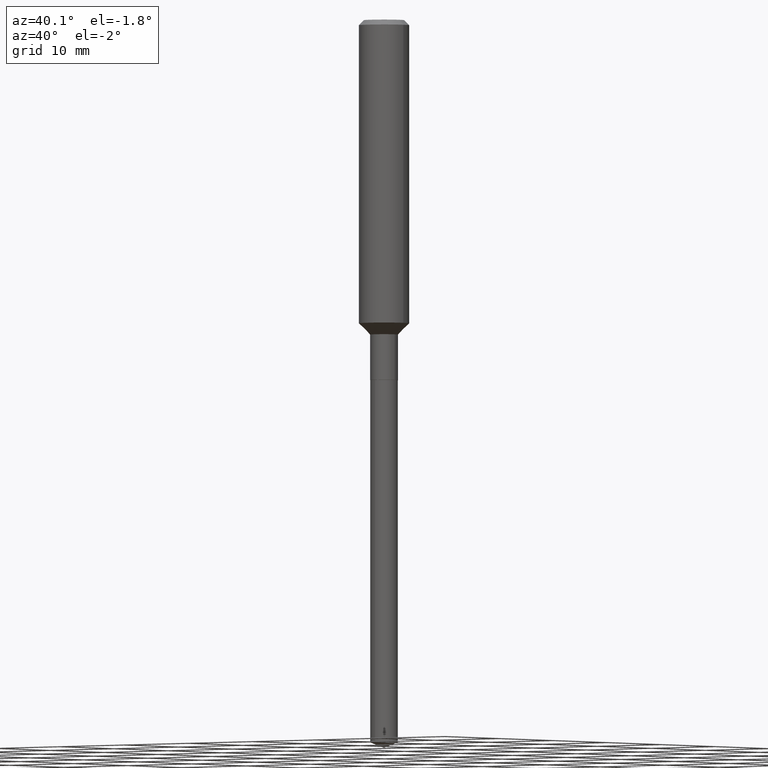
[diagram: clean part render]
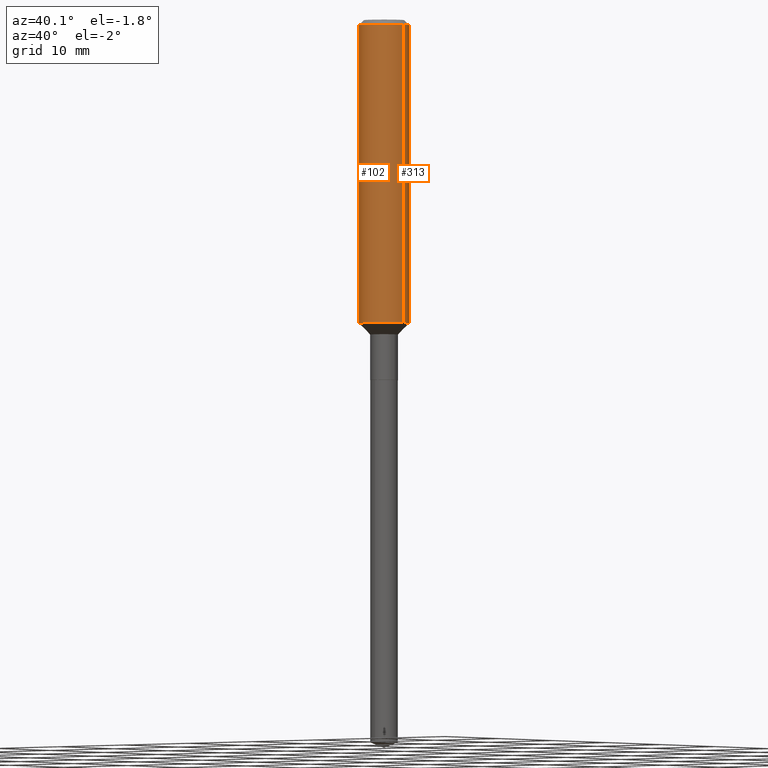
[diagram: same view with one multi-face feature highlighted, each face labeled with its STEP entity id]
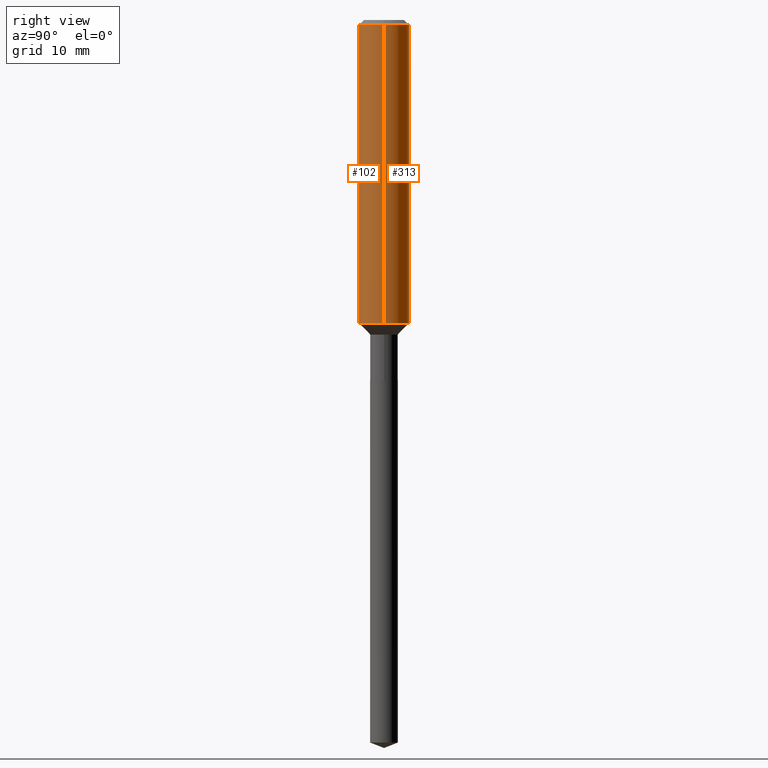
[diagram: same view with one multi-face feature highlighted, each face labeled with its STEP entity id]
A machine part, auxiliary view. The highlighted faces form ONE feature: a constant-radius fillet chain: 2 tangent blend faces with common blend radius 2.9997 mm. The faces share edges in the B-rep.
A second angle (right view) of the same feature is appended — it is thin or edge-on in the first view.
Their STEP definitions:
[1] entity #313 (Cylinder):
#3 = CARTESIAN_POINT ( 'NONE',  ( 0.1181000000000000799, -8.246878922347486570E-16, 5.758764772215004644E-30 ) ) ;
#17 = DIRECTION ( 'NONE',  ( -2.445468806185136597E-29, 3.491481338843145583E-15, 1.000000000000000000 ) ) ;
#50 = CARTESIAN_POINT ( 'NONE',  ( -0.1180999999999999966, -1.686883405500253272E-15, -0.02362000000000014435 ) ) ;
#51 = EDGE_CURVE ( 'NONE', #73, #320, #351, .T. ) ;
#59 = EDGE_CURVE ( 'NONE', #99, #178, #279, .T. ) ;
#73 = VERTEX_POINT ( 'NONE', #311 ) ;
#82 = CIRCLE ( 'NONE', #216, 0.1180999999999999966 ) ;
#99 = VERTEX_POINT ( 'NONE', #272 ) ;
#139 = CYLINDRICAL_SURFACE ( 'NONE', #432, 0.1181000000000000799 ) ;
#162 = CARTESIAN_POINT ( 'NONE',  ( -0.1181000000000000799, 8.391509709326788873E-16, -5.809262341591047988E-30 ) ) ;
#174 = AXIS2_PLACEMENT_3D ( 'NONE', #441, #466, #202 ) ;
#178 = VERTEX_POINT ( 'NONE', #50 ) ;
#202 = DIRECTION ( 'NONE',  ( 1.000000000000000000, -6.982962677686263555E-15, 0.000000000000000000 ) ) ;
#205 = DIRECTION ( 'NONE',  ( -2.445468806185136597E-29, 3.491481338843145583E-15, 1.000000000000000000 ) ) ;
#213 = CARTESIAN_POINT ( 'NONE',  ( 0.1180999999999999966, -9.071566814582237199E-16, -0.02362000000000014435 ) ) ;
#216 = AXIS2_PLACEMENT_3D ( 'NONE', #477, #17, #470 ) ;
#221 = ORIENTED_EDGE ( 'NONE', *, *, #51, .F. ) ;
#233 = DIRECTION ( 'NONE',  ( -2.445468806185136877E-29, 3.491481338843145188E-15, 1.000000000000000000 ) ) ;
#234 = VECTOR ( 'NONE', #233, 39.37007874015748143 ) ;
#242 = ORIENTED_EDGE ( 'NONE', *, *, #59, .T. ) ;
#243 = EDGE_CURVE ( 'NONE', #73, #99, #253, .T. ) ;
#253 = CIRCLE ( 'NONE', #174, 0.1181000000000001632 ) ;
#272 = CARTESIAN_POINT ( 'NONE',  ( -0.1181000000000001632, -4.130448992709710466E-15, -1.423349999999999671 ) ) ;
#279 = LINE ( 'NONE', #162, #234 ) ;
#286 = VECTOR ( 'NONE', #306, 39.37007874015748143 ) ;
#288 = FACE_OUTER_BOUND ( 'NONE', #404, .T. ) ;
#306 = DIRECTION ( 'NONE',  ( -2.445468806185136877E-29, 3.491481338843145188E-15, 1.000000000000000000 ) ) ;
#311 = CARTESIAN_POINT ( 'NONE',  ( 0.1181000000000001632, -5.794287855877138504E-15, -1.423349999999999671 ) ) ;
#313 = ADVANCED_FACE ( 'NONE', ( #288 ), #139, .T. ) ;
#320 = VERTEX_POINT ( 'NONE', #213 ) ;
#325 = EDGE_CURVE ( 'NONE', #320, #178, #82, .T. ) ;
#332 = ORIENTED_EDGE ( 'NONE', *, *, #243, .T. ) ;
#351 = LINE ( 'NONE', #3, #286 ) ;
#365 = DIRECTION ( 'NONE',  ( 1.000000000000000000, -6.982962677686266711E-15, 4.876176775795936353E-29 ) ) ;
#404 = EDGE_LOOP ( 'NONE', ( #332, #242, #472, #221 ) ) ;
#432 = AXIS2_PLACEMENT_3D ( 'NONE', #438, #205, #365 ) ;
#438 = CARTESIAN_POINT ( 'NONE',  ( 0.000000000000000000, 0.000000000000000000, 0.000000000000000000 ) ) ;
#441 = CARTESIAN_POINT ( 'NONE',  ( 3.480758025283613406E-29, -4.969599963642390241E-15, -1.423349999999999671 ) ) ;
#466 = DIRECTION ( 'NONE',  ( -2.445468806185136597E-29, 3.491481338843145583E-15, 1.000000000000000000 ) ) ;
#470 = DIRECTION ( 'NONE',  ( 1.000000000000000000, -6.982962677686266711E-15, 0.000000000000000000 ) ) ;
#472 = ORIENTED_EDGE ( 'NONE', *, *, #325, .F. ) ;
#477 = CARTESIAN_POINT ( 'NONE',  ( 5.776197320209328408E-31, -8.246878922347560526E-17, -0.02362000000000014435 ) ) ;
[2] entity #102 (Cylinder):
#3 = CARTESIAN_POINT ( 'NONE',  ( 0.1181000000000000799, -8.246878922347486570E-16, 5.758764772215004644E-30 ) ) ;
#18 = ORIENTED_EDGE ( 'NONE', *, *, #255, .T. ) ;
#28 = ORIENTED_EDGE ( 'NONE', *, *, #59, .F. ) ;
#40 = ORIENTED_EDGE ( 'NONE', *, *, #51, .T. ) ;
#44 = DIRECTION ( 'NONE',  ( -2.445468806185136597E-29, 3.491481338843145583E-15, 1.000000000000000000 ) ) ;
#50 = CARTESIAN_POINT ( 'NONE',  ( -0.1180999999999999966, -1.686883405500253272E-15, -0.02362000000000014435 ) ) ;
#51 = EDGE_CURVE ( 'NONE', #73, #320, #351, .T. ) ;
#52 = DIRECTION ( 'NONE',  ( -2.445468806185136597E-29, 3.491481338843145583E-15, 1.000000000000000000 ) ) ;
#59 = EDGE_CURVE ( 'NONE', #99, #178, #279, .T. ) ;
#73 = VERTEX_POINT ( 'NONE', #311 ) ;
#91 = DIRECTION ( 'NONE',  ( 1.000000000000000000, -6.982962677686266711E-15, 0.000000000000000000 ) ) ;
#99 = VERTEX_POINT ( 'NONE', #272 ) ;
#102 = ADVANCED_FACE ( 'NONE', ( #421 ), #198, .T. ) ;
#141 = CARTESIAN_POINT ( 'NONE',  ( 5.776197320209328408E-31, -8.246878922347560526E-17, -0.02362000000000014435 ) ) ;
#150 = ORIENTED_EDGE ( 'NONE', *, *, #219, .F. ) ;
#162 = CARTESIAN_POINT ( 'NONE',  ( -0.1181000000000000799, 8.391509709326788873E-16, -5.809262341591047988E-30 ) ) ;
#178 = VERTEX_POINT ( 'NONE', #50 ) ;
#196 = AXIS2_PLACEMENT_3D ( 'NONE', #141, #52, #91 ) ;
#198 = CYLINDRICAL_SURFACE ( 'NONE', #298, 0.1181000000000000799 ) ;
#210 = CIRCLE ( 'NONE', #196, 0.1180999999999999966 ) ;
#213 = CARTESIAN_POINT ( 'NONE',  ( 0.1180999999999999966, -9.071566814582237199E-16, -0.02362000000000014435 ) ) ;
#219 = EDGE_CURVE ( 'NONE', #178, #320, #210, .T. ) ;
#233 = DIRECTION ( 'NONE',  ( -2.445468806185136877E-29, 3.491481338843145188E-15, 1.000000000000000000 ) ) ;
#234 = VECTOR ( 'NONE', #233, 39.37007874015748143 ) ;
#251 = AXIS2_PLACEMENT_3D ( 'NONE', #427, #355, #326 ) ;
#255 = EDGE_CURVE ( 'NONE', #99, #73, #386, .T. ) ;
#272 = CARTESIAN_POINT ( 'NONE',  ( -0.1181000000000001632, -4.130448992709710466E-15, -1.423349999999999671 ) ) ;
#279 = LINE ( 'NONE', #162, #234 ) ;
#286 = VECTOR ( 'NONE', #306, 39.37007874015748143 ) ;
#298 = AXIS2_PLACEMENT_3D ( 'NONE', #426, #44, #459 ) ;
#301 = EDGE_LOOP ( 'NONE', ( #28, #18, #40, #150 ) ) ;
#306 = DIRECTION ( 'NONE',  ( -2.445468806185136877E-29, 3.491481338843145188E-15, 1.000000000000000000 ) ) ;
#311 = CARTESIAN_POINT ( 'NONE',  ( 0.1181000000000001632, -5.794287855877138504E-15, -1.423349999999999671 ) ) ;
#320 = VERTEX_POINT ( 'NONE', #213 ) ;
#326 = DIRECTION ( 'NONE',  ( 1.000000000000000000, -6.982962677686263555E-15, 0.000000000000000000 ) ) ;
#351 = LINE ( 'NONE', #3, #286 ) ;
#355 = DIRECTION ( 'NONE',  ( -2.445468806185136597E-29, 3.491481338843145583E-15, 1.000000000000000000 ) ) ;
#386 = CIRCLE ( 'NONE', #251, 0.1181000000000001632 ) ;
#421 = FACE_OUTER_BOUND ( 'NONE', #301, .T. ) ;
#426 = CARTESIAN_POINT ( 'NONE',  ( 0.000000000000000000, 0.000000000000000000, 0.000000000000000000 ) ) ;
#427 = CARTESIAN_POINT ( 'NONE',  ( 3.480758025283613406E-29, -4.969599963642390241E-15, -1.423349999999999671 ) ) ;
#459 = DIRECTION ( 'NONE',  ( 1.000000000000000000, -6.982962677686266711E-15, 4.876176775795936353E-29 ) ) ;